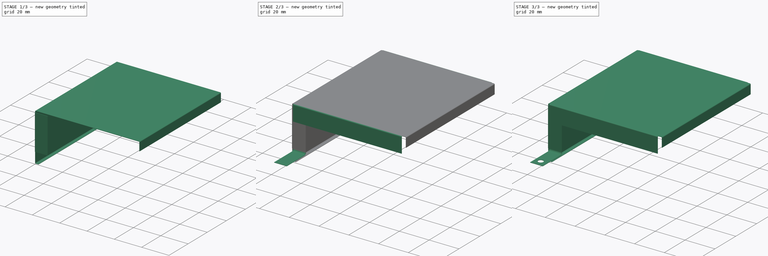
[diagram: build sequence overview — one tinted view per stage of 3, left to right]
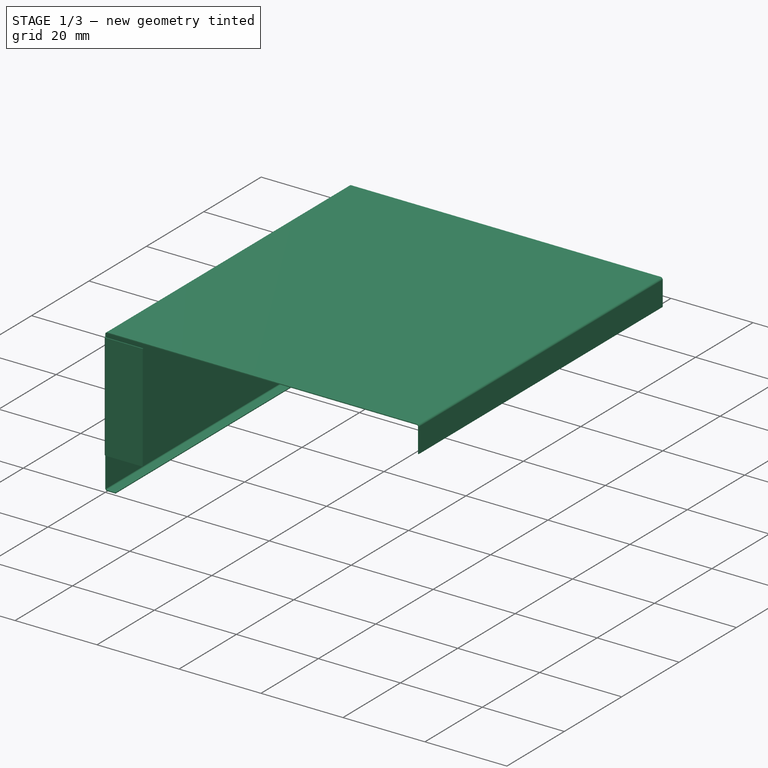
[diagram: stage 1 of 3 — iso view after this stage's code; geometry added in this stage tinted green]
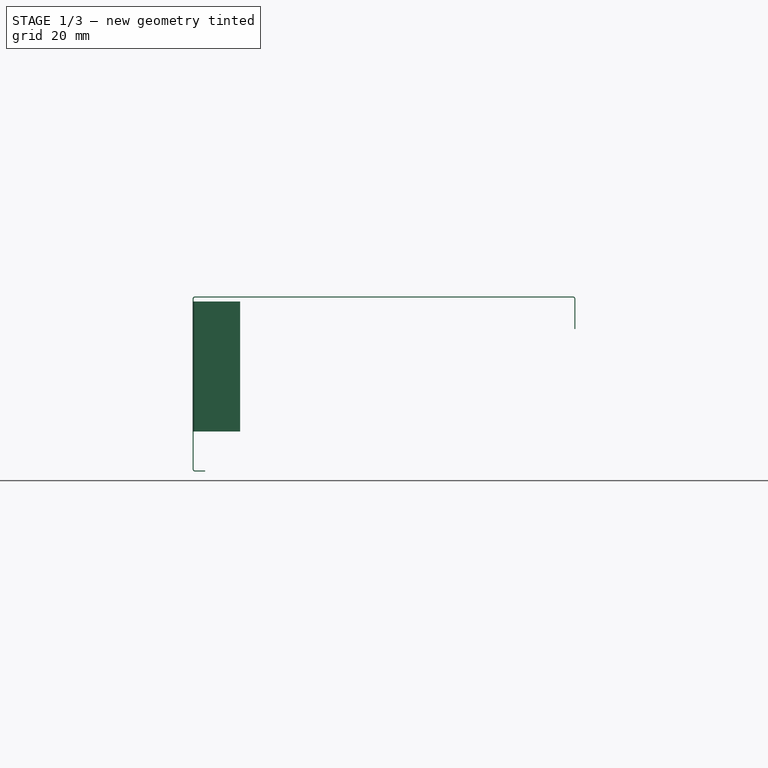
[diagram: stage 1 of 3 — front view after this stage's code; geometry added in this stage tinted green]
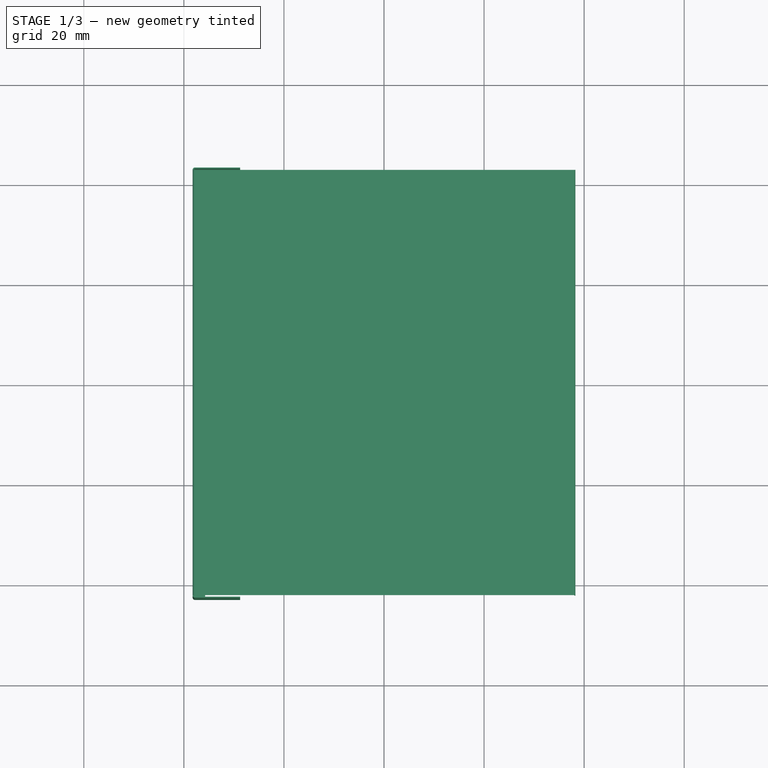
[diagram: stage 1 of 3 — top view after this stage's code; geometry added in this stage tinted green]
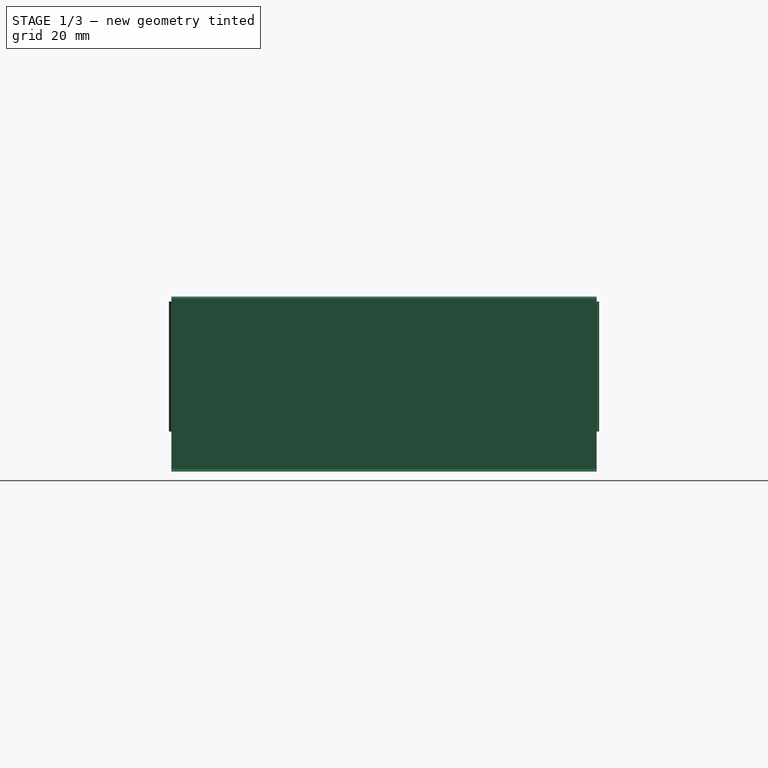
[diagram: stage 1 of 3 — right view after this stage's code; geometry added in this stage tinted green]
FCSTD DOCUMENT  (FreeCAD 0.19R23058 (Git))
Label: top_shell
License: All rights reserved
LicenseURL: http://en.wikipedia.org/wiki/All_rights_reserved
objects: Sketcher::SketchObject×6, PartDesign::Pad×4, PartDesign::Line×4, PartDesign::Pocket×2, PartDesign::Point×2, PartDesign::Body×1
note: 25 computed .brp shape members not serialized (recipe doc carries the construction recipe); baked Part::Feature solids carry a one-line shape summary decoded from their .brp

FEATURE [Sketcher::SketchObject] Sketch
  MapMode = 5
  Placement = pos=(0,0,0) rot=(1,0,0;1.5708rad)
  Support = -> [XZ_Plane]
  sketch-geometry (16):
    g0: LineSegment StartX=-35.75 StartY=-35 StartZ=0 EndX=-37.75 EndY=-35 EndZ=0
    g1: LineSegment StartX=-38.25 StartY=-34.5 StartZ=0 EndX=-38.25 EndY=-0.5 EndZ=0
    g2: LineSegment StartX=-37.75 StartY=0 StartZ=0 EndX=37.75 EndY=0 EndZ=0
    g3: LineSegment StartX=38.25 StartY=-0.5 StartZ=0 EndX=38.25 EndY=-6.5 EndZ=0
    g4: LineSegment StartX=38.25 StartY=-6.5 StartZ=0 EndX=38.05 EndY=-6.5 EndZ=0
    g5: LineSegment StartX=38.05 StartY=-6.5 StartZ=0 EndX=38.05 EndY=-0.5 EndZ=0
    g6: LineSegment StartX=37.75 StartY=-0.2 StartZ=0 EndX=-37.75 EndY=-0.2 EndZ=0
    g7: LineSegment StartX=-38.05 StartY=-0.5 StartZ=0 EndX=-38.05 EndY=-34.5 EndZ=0
    g8: LineSegment StartX=-37.75 StartY=-34.8 StartZ=0 EndX=-35.75 EndY=-34.8 EndZ=0
    g9: LineSegment StartX=-35.75 StartY=-34.8 StartZ=0 EndX=-35.75 EndY=-35 EndZ=0
    g10: ArcOfCircle CenterX=-37.75 CenterY=-34.5 CenterZ=0 NormalX=0 NormalY=0 NormalZ=1 AngleXU=0 Radius=0.5 StartAngle=3.14159 EndAngle=4.71239
    g11: ArcOfCircle CenterX=-37.75 CenterY=-34.5 CenterZ=0 NormalX=0 NormalY=0 NormalZ=1 AngleXU=0 Radius=0.3 StartAngle=3.14159 EndAngle=4.71239
    g12: ArcOfCircle CenterX=-37.75 CenterY=-0.5 CenterZ=0 NormalX=0 NormalY=0 NormalZ=1 AngleXU=0 Radius=0.3 StartAngle=1.5708 EndAngle=3.14159
    g13: ArcOfCircle CenterX=-37.75 CenterY=-0.5 CenterZ=0 NormalX=0 NormalY=0 NormalZ=1 AngleXU=0 Radius=0.5 StartAngle=1.5708 EndAngle=3.14159
    g14: ArcOfCircle CenterX=37.75 CenterY=-0.5 CenterZ=0 NormalX=0 NormalY=0 NormalZ=1 AngleXU=0 Radius=0.3 StartAngle=0 EndAngle=1.5708
    g15: ArcOfCircle CenterX=37.75 CenterY=-0.5 CenterZ=0 NormalX=0 NormalY=0 NormalZ=1 AngleXU=0 Radius=0.5 StartAngle=0 EndAngle=1.5708
  constraints (38):
    c: Horizontal(g0)
    c: Vertical(g1)
    c: Vertical(g3)
    c: Coincident(g3,g4)
    c: Horizontal(g4)
    c: Coincident(g4,g5)
    c: Vertical(g5)
    c: Vertical(g7)
    c: Horizontal(g8)
    c: Coincident(g8,g9)
    c: Coincident(g9,g0)
    c: Vertical(g9)
    c: Tangent(g0,g10) = 1.5708
    c: Tangent(g1,g10) = 1.5708
    c: Tangent(g8,g11) = -1.5708
    c: Tangent(g7,g11) = -1.5708
    c: Tangent(g7,g12) = -1.5708
    c: Tangent(g6,g12) = -1.5708
    c: Tangent(g1,g13) = 1.5708
    c: Tangent(g2,g13) = 1.5708
    c: Tangent(g5,g14) = -1.5708
    c: Tangent(g6,g14) = -1.5708
    c: Tangent(g3,g15) = 1.5708
    c: Tangent(g2,g15) = 1.5708
    c: DistanceY(g9,g9) = 0.2
    c: Coincident(g10,g11)
    c: Coincident(g13,g12)
    c: Coincident(g15,g14)
    c: Radius(g10) = 0.5
    c: DistanceX(g2,g2) = 75.5
    c: DistanceY(g1,g1) = 34
    c: PointOnObject(g2,g-1)
    c: Symmetric(g2,g2,g-2)
    c: Equal(g13,g15)
    c: Equal(g15,g10)
    c: Equal(g9,g4)
    c: DistanceY(g3,g3) = 6
    c: DistanceX(g0,g0) = 2
FEATURE [PartDesign::Pad] Pad
  Direction = (1,1,1)
  Length = 85
  Length2 = 100
  Midplane = true
  Placement = pos=(0,0,0) rot=(1,0,0;1.5708rad)
  Profile = -> Sketch
  Type = 0
FEATURE [Sketcher::SketchObject] Sketch001
  AttachmentOffset = pos=(0,0,-1) rot=(0,0,1;0rad)
  ExternalGeometry = -> [Pad]
  MapMode = 5
  Placement = pos=(0,0,-1) rot=(0,0,1;3.14159rad)
  Support = -> [Pad]
  sketch-geometry (14):
    g0: ArcOfCircle CenterX=37.75 CenterY=42.5 CenterZ=0 NormalX=0 NormalY=0 NormalZ=1 AngleXU=0 Radius=0.5 StartAngle=0 EndAngle=1.5708
    g1: ArcOfCircle CenterX=37.75 CenterY=42.5 CenterZ=0 NormalX=0 NormalY=0 NormalZ=1 AngleXU=0 Radius=0.3 StartAngle=0 EndAngle=1.5708
    g2: LineSegment StartX=38.05 StartY=42.5 StartZ=0 EndX=38.25 EndY=42.5 EndZ=0
    g3: LineSegment StartX=37.75 StartY=43 StartZ=0 EndX=28.75 EndY=43 EndZ=0
    g4: LineSegment StartX=28.75 StartY=43 StartZ=0 EndX=28.75 EndY=42.8 EndZ=0
    g5: LineSegment StartX=28.75 StartY=42.8 StartZ=0 EndX=37.75 EndY=42.8 EndZ=0
    g6: LineSegment [constr] StartX=38.05 StartY=42.5 StartZ=0 EndX=37.75 EndY=42.5 EndZ=0
    g7: ArcOfCircle CenterX=37.75 CenterY=-42.5 CenterZ=0 NormalX=0 NormalY=0 NormalZ=1 AngleXU=0 Radius=0.5 StartAngle=4.71239 EndAngle=6.28319
    g8: ArcOfCircle CenterX=37.75 CenterY=-42.5 CenterZ=0 NormalX=0 NormalY=0 NormalZ=1 AngleXU=0 Radius=0.3 StartAngle=4.71239 EndAngle=6.28319
    g9: LineSegment StartX=38.05 StartY=-42.5 StartZ=0 EndX=38.25 EndY=-42.5 EndZ=0
    g10: LineSegment StartX=37.75 StartY=-42.8 StartZ=0 EndX=28.75 EndY=-42.8 EndZ=0
    g11: LineSegment StartX=28.75 StartY=-42.8 StartZ=0 EndX=28.75 EndY=-43 EndZ=0
    g12: LineSegment StartX=28.75 StartY=-43 StartZ=0 EndX=37.75 EndY=-43 EndZ=0
    g13: LineSegment [constr] StartX=37.75 StartY=-42.5 StartZ=0 EndX=38.05 EndY=-42.5 EndZ=0
  constraints (36):
    c: Coincident(g1,g0)
    c: Horizontal(g2)
    c: Horizontal(g3)
    c: Coincident(g3,g4)
    c: Vertical(g4)
    c: Coincident(g4,g5)
    c: Horizontal(g5)
    c: Tangent(g3,g0) = -1.5708
    c: Tangent(g5,g1) = 1.5708
    c: Coincident(g2,g1)
    c: Coincident(g2,g0)
    c: Coincident(g6,g1)
    c: Horizontal(g6)
    c: Coincident(g0,g6)
    c: Coincident(g0,g-3)
    c: Radius(g0) = 0.5
    c: DistanceX(g2,g2) = 0.2
    c: DistanceX(g3,g3) = 9
    c: Coincident(g8,g7)
    c: Horizontal(g10)
    c: Coincident(g10,g11)
    c: Vertical(g11)
    c: Coincident(g11,g12)
    c: Horizontal(g12)
    c: Tangent(g10,g8) = 1.5708
    c: Tangent(g12,g7) = -1.5708
    c: Coincident(g8,g9)
    c: Equal(g2,g9)
    c: Equal(g7,g0)
    c: Coincident(g9,g7)
    c: Horizontal(g9)
    c: Coincident(g7,g-4)
    c: DistanceX(g12,g12) = 9
    c: Coincident(g13,g7)
    c: Coincident(g13,g8)
    c: Horizontal(g13)
FEATURE [PartDesign::Pad] Pad001
  BaseFeature = -> Pad
  Direction = (1,1,1)
  Length = 26
  Length2 = 100
  Placement = pos=(0,0,0) rot=(1,0,0;1.5708rad)
  Profile = -> Sketch001
  Reversed = true
  Type = 0
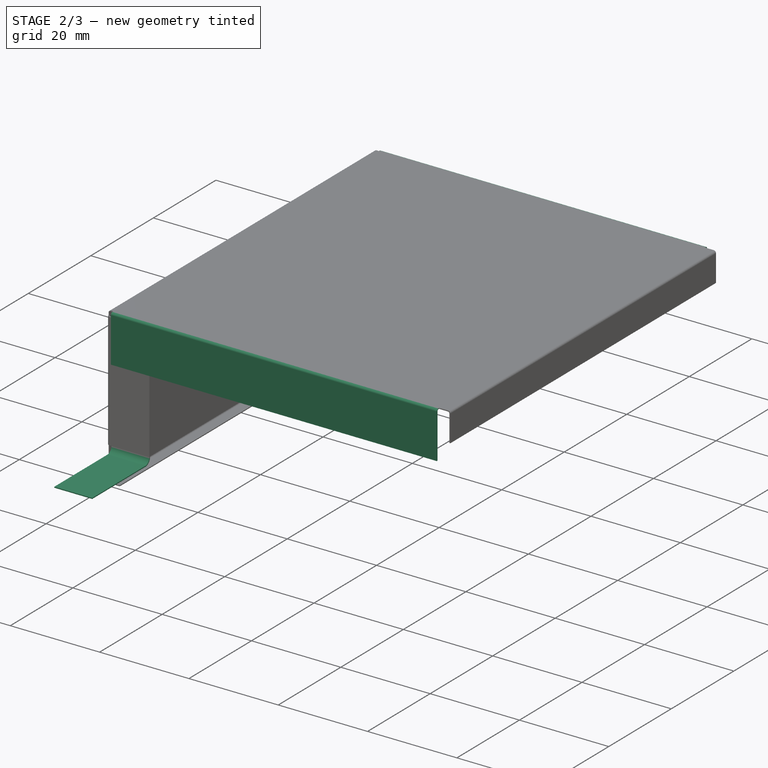
[diagram: stage 2 of 3 — iso view after this stage's code; geometry added in this stage tinted green]
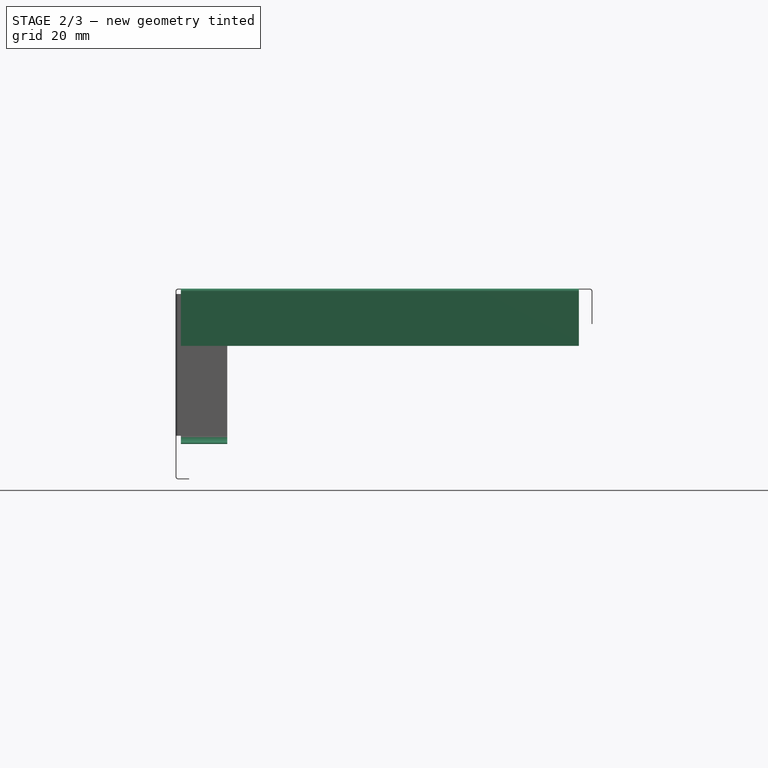
[diagram: stage 2 of 3 — front view after this stage's code; geometry added in this stage tinted green]
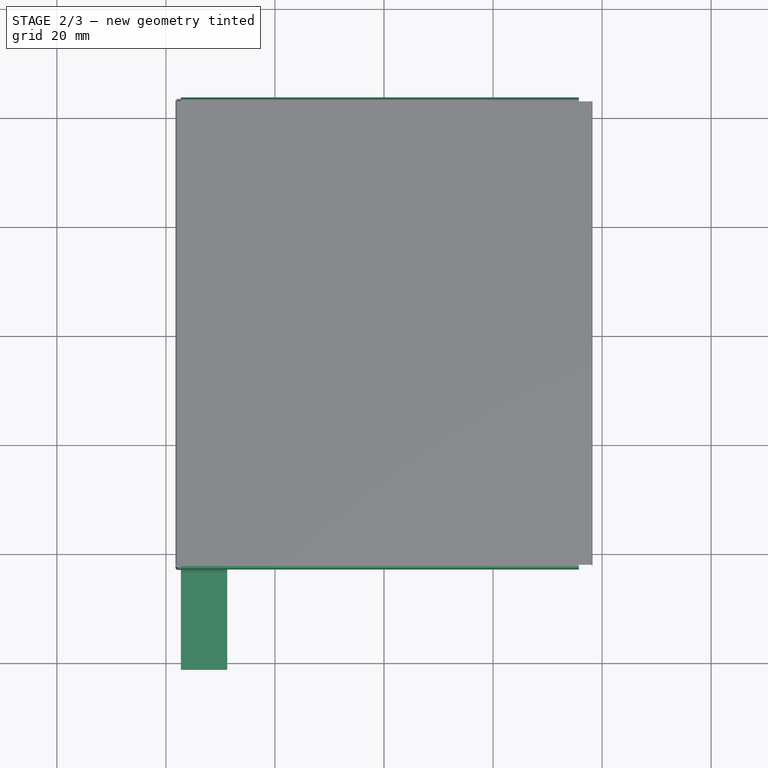
[diagram: stage 2 of 3 — top view after this stage's code; geometry added in this stage tinted green]
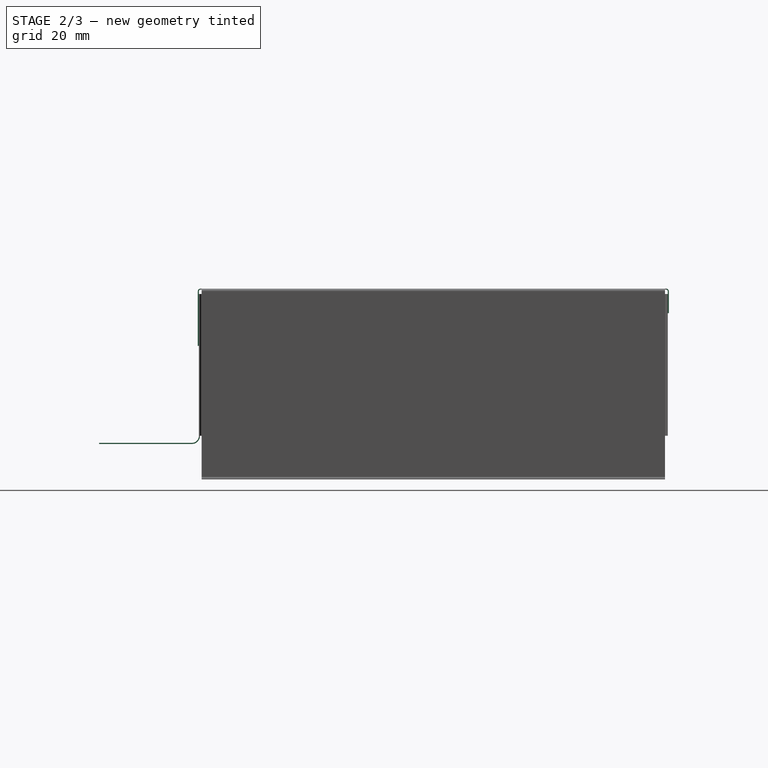
[diagram: stage 2 of 3 — right view after this stage's code; geometry added in this stage tinted green]
FEATURE [Sketcher::SketchObject] Sketch002
  AttachmentOffset = pos=(0,0,-1) rot=(0,0,1;0rad)
  ExternalGeometry = -> [Pad001]
  MapMode = 5
  Placement = pos=(-37.25,0,2e-16) rot=(0.707107,0,-0.707107;3.14159rad)
  Support = -> [Pad001]
  sketch-geometry (16):
    g0: ArcOfCircle CenterX=0.5 CenterY=42.7 CenterZ=0 NormalX=0 NormalY=0 NormalZ=1 AngleXU=0 Radius=0.5 StartAngle=1.5708 EndAngle=3.14159
    g1: ArcOfCircle CenterX=0.5 CenterY=42.7 CenterZ=0 NormalX=0 NormalY=0 NormalZ=1 AngleXU=0 Radius=0.3 StartAngle=1.5708 EndAngle=3.14159
    g2: LineSegment StartX=-5.88e-14 StartY=42.7 StartZ=0 EndX=-5.88e-14 EndY=42.5 EndZ=0
    g3: LineSegment StartX=-5.88e-14 StartY=42.5 StartZ=0 EndX=0.2 EndY=42.5 EndZ=0
    g4: LineSegment StartX=0.2 StartY=42.5 StartZ=0 EndX=0.2 EndY=42.7 EndZ=0
    g5: LineSegment StartX=0.5 StartY=43 StartZ=0 EndX=10.5 EndY=43 EndZ=0
    g6: LineSegment StartX=10.5 StartY=43 StartZ=0 EndX=10.5 EndY=43.2 EndZ=0
    g7: LineSegment StartX=10.5 StartY=43.2 StartZ=0 EndX=0.5 EndY=43.2 EndZ=0
    g8: ArcOfCircle CenterX=0.5 CenterY=-42.7 CenterZ=0 NormalX=0 NormalY=0 NormalZ=1 AngleXU=0 Radius=0.5 StartAngle=3.14159 EndAngle=4.71239
    g9: ArcOfCircle CenterX=0.5 CenterY=-42.7 CenterZ=0 NormalX=0 NormalY=0 NormalZ=1 AngleXU=0 Radius=0.3 StartAngle=3.14159 EndAngle=4.71239
    g10: LineSegment StartX=3.367e-13 StartY=-42.7 StartZ=0 EndX=3.367e-13 EndY=-42.5 EndZ=0
    g11: LineSegment StartX=3.367e-13 StartY=-42.5 StartZ=0 EndX=0.2 EndY=-42.5 EndZ=0
    g12: LineSegment StartX=0.2 StartY=-42.5 StartZ=0 EndX=0.2 EndY=-42.7 EndZ=0
    g13: LineSegment StartX=0.5 StartY=-43 StartZ=0 EndX=4.5 EndY=-43 EndZ=0
    g14: LineSegment StartX=4.5 StartY=-43 StartZ=0 EndX=4.5 EndY=-43.2 EndZ=0
    g15: LineSegment StartX=4.5 StartY=-43.2 StartZ=0 EndX=0.5 EndY=-43.2 EndZ=0
  constraints (40):
    c: Coincident(g1,g0)
    c: Vertical(g2)
    c: Coincident(g2,g3)
    c: Horizontal(g3)
    c: Coincident(g3,g4)
    c: Vertical(g4)
    c: Horizontal(g5)
    c: Coincident(g5,g6)
    c: Vertical(g6)
    c: Coincident(g6,g7)
    c: Horizontal(g7)
    c: Tangent(g2,g0) = -1.5708
    c: Tangent(g4,g1) = 1.5708
    c: Tangent(g1,g5) = 1.5708
    c: Tangent(g7,g0) = -1.5708
    c: DistanceY(g6,g6) = 0.2
    c: Radius(g0) = 0.5
    c: Coincident(g2,g-3)
    c: DistanceY(g2,g2) = 0.2
    c: Coincident(g9,g8)
    c: Vertical(g10)
    c: Coincident(g10,g11)
    c: Horizontal(g11)
    c: Coincident(g11,g12)
    c: Vertical(g12)
    c: Horizontal(g13)
    c: Coincident(g13,g14)
    c: Vertical(g14)
    c: Coincident(g14,g15)
    c: Horizontal(g15)
    c: Tangent(g8,g10) = 1.5708
    c: Tangent(g12,g9) = -1.5708
    c: Tangent(g9,g13) = -1.5708
    c: Tangent(g8,g15) = 1.5708
    c: Equal(g8,g0)
    c: Equal(g11,g3)
    c: Equal(g10,g2)
    c: DistanceX(g7,g7) = 10
    c: Coincident(g10,g-4)
    c: DistanceX(g15,g15) = 4
FEATURE [PartDesign::Pad] Pad002
  BaseFeature = -> Pad001
  Direction = (1,1,1)
  Length = 73
  Length2 = 100
  Placement = pos=(0,0,0) rot=(1,0,0;1.5708rad)
  Profile = -> Sketch002
  Reversed = true
  Type = 0
FEATURE [Sketcher::SketchObject] Sketch003
  ExternalGeometry = -> [Pad002]
  MapMode = 5
  Placement = pos=(-28.75,0,0) rot=(0.707107,0,0.707107;3.14159rad)
  Support = -> [Pad002]
  sketch-geometry (7):
    g0: ArcOfCircle CenterX=-27 CenterY=44.3 CenterZ=0 NormalX=0 NormalY=0 NormalZ=1 AngleXU=0 Radius=1.3 StartAngle=3.14159 EndAngle=4.71239
    g1: ArcOfCircle CenterX=-27 CenterY=44.3 CenterZ=0 NormalX=0 NormalY=0 NormalZ=1 AngleXU=0 Radius=1.5 StartAngle=3.14159 EndAngle=4.71239
    g2: LineSegment StartX=-28.3 StartY=44.3 StartZ=0 EndX=-28.3 EndY=61.3 EndZ=0
    g3: LineSegment StartX=-28.3 StartY=61.3 StartZ=0 EndX=-28.5 EndY=61.3 EndZ=0
    g4: LineSegment StartX=-28.5 StartY=61.3 StartZ=0 EndX=-28.5 EndY=44.3 EndZ=0
    g5: LineSegment StartX=-27 StartY=43 StartZ=0 EndX=-27 EndY=42.8 EndZ=0
    g6: LineSegment [constr] StartX=-27 StartY=43 StartZ=0 EndX=-27 EndY=44.3 EndZ=0
  constraints (18):
    c: Coincident(g1,g0)
    c: Vertical(g2)
    c: Coincident(g2,g3)
    c: Horizontal(g3)
    c: Coincident(g3,g4)
    c: Vertical(g4)
    c: Tangent(g2,g0) = 1.5708
    c: Tangent(g4,g1) = -1.5708
    c: Vertical(g5)
    c: Coincident(g0,g5)
    c: Coincident(g5,g1)
    c: DistanceY(g5,g5) = 0.2
    c: Coincident(g6,g0)
    c: Coincident(g6,g0)
    c: Vertical(g6)
    c: Coincident(g1,g-3)
    c: Radius(g1) = 1.5
    c: DistanceY(g4,g4) = 17
FEATURE [PartDesign::Pad] Pad003
  BaseFeature = -> Pad002
  Direction = (1,1,1)
  Length = 8.5
  Length2 = 100
  Placement = pos=(0,0,0) rot=(1,0,0;1.5708rad)
  Profile = -> Sketch003
  Reversed = true
  Type = 0
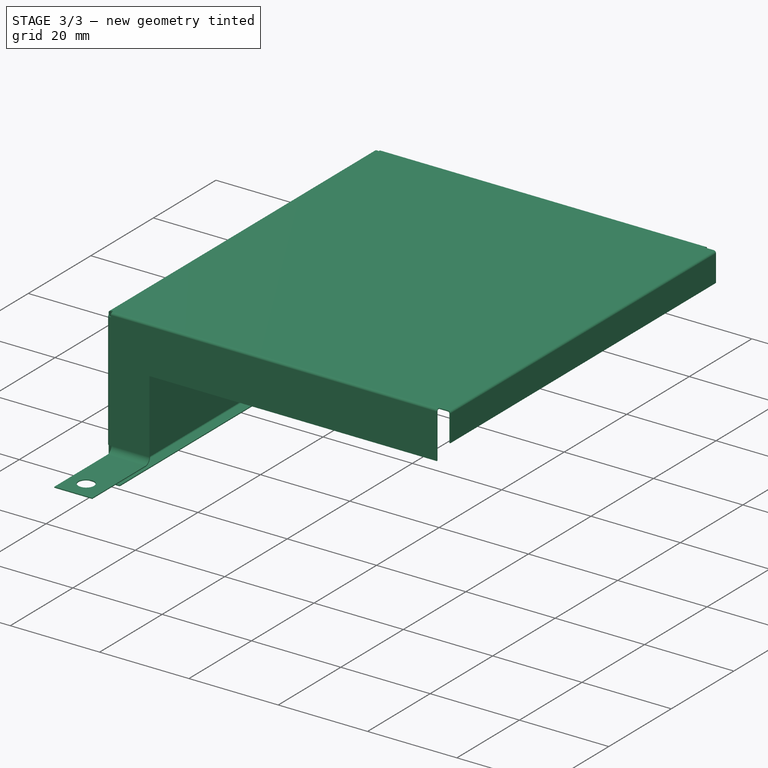
[diagram: stage 3 of 3 — iso view after this stage's code; geometry added in this stage tinted green]
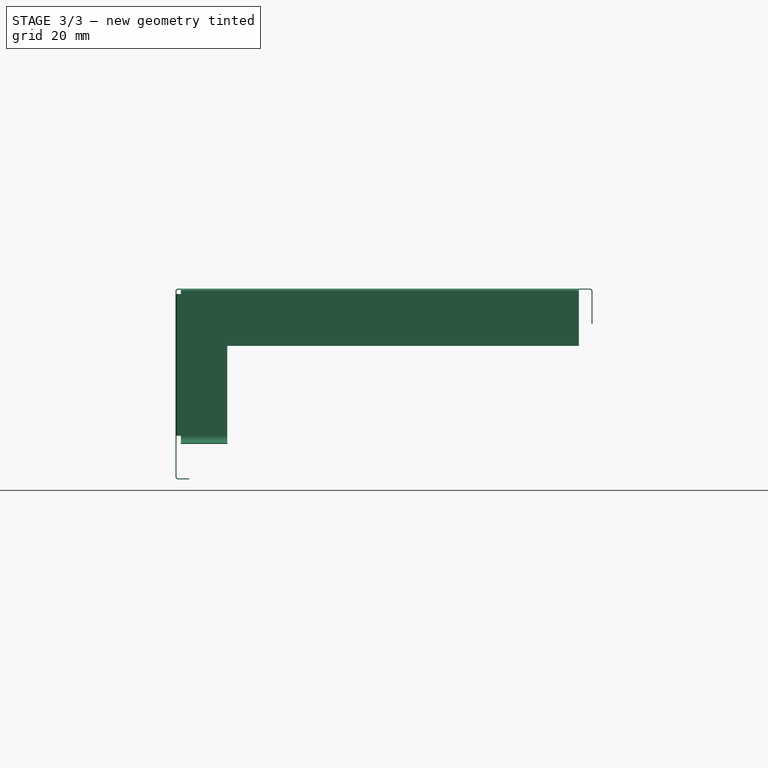
[diagram: stage 3 of 3 — front view after this stage's code; geometry added in this stage tinted green]
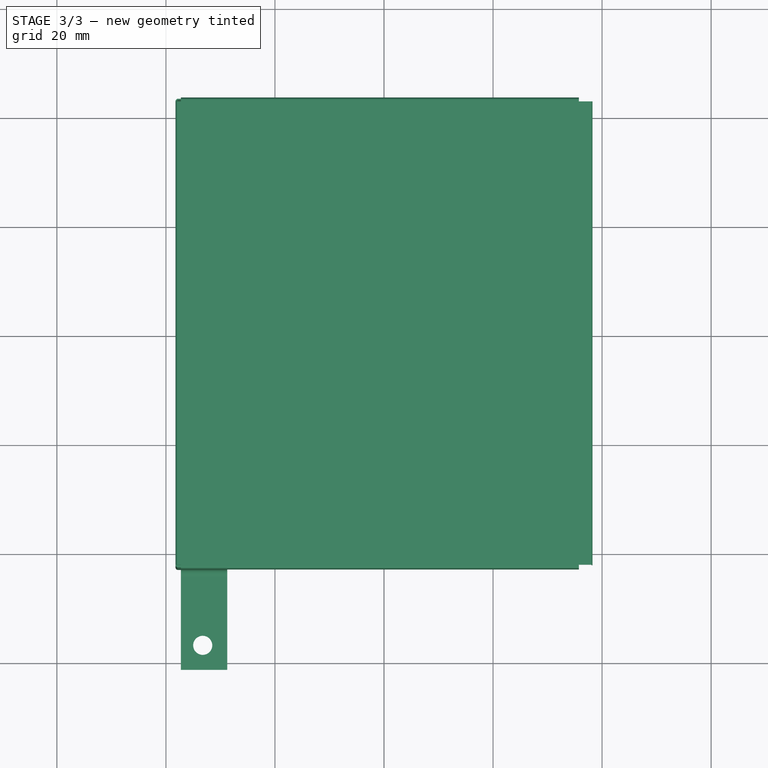
[diagram: stage 3 of 3 — top view after this stage's code; geometry added in this stage tinted green]
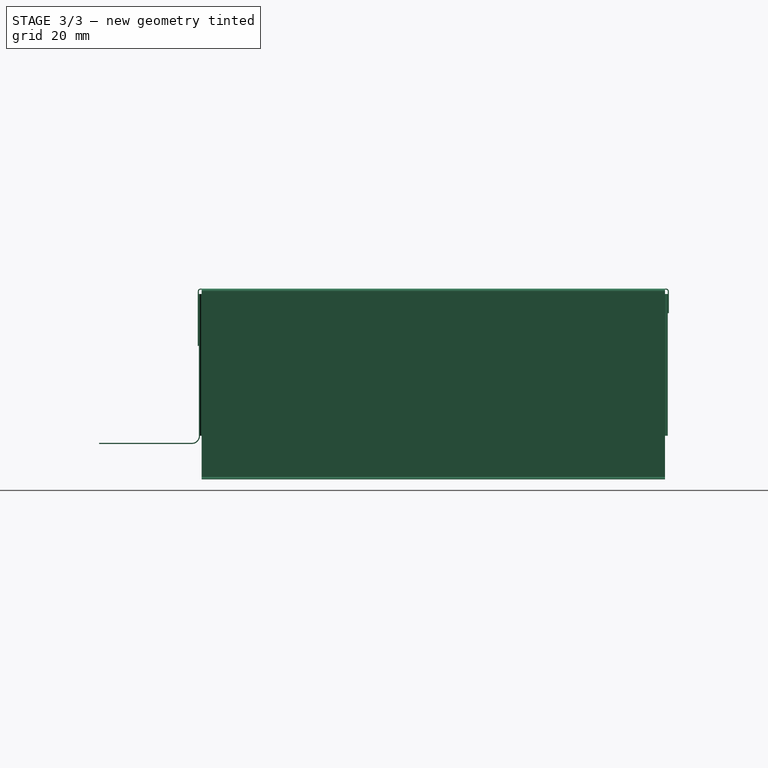
[diagram: stage 3 of 3 — right view after this stage's code; geometry added in this stage tinted green]
FEATURE [Sketcher::SketchObject] Sketch004
  ExternalGeometry = -> [Pad003]
  MapMode = 5
  Placement = pos=(0,43,0) rot=(-1,0,0;1.5708rad)
  Support = -> [Pad003]
  sketch-geometry (1):
    g0: Circle CenterX=-32.75 CenterY=15 CenterZ=0 NormalX=0 NormalY=0 NormalZ=1 AngleXU=0 Radius=1.75
  constraints (3):
    c: DistanceY(g0,g-3) = 12
    c: DistanceX(g0,g-3) = 4
    c: Radius(g0) = 1.75
FEATURE [PartDesign::Pocket] Pocket
  BaseFeature = -> Pad003
  Length = 5
  Length2 = 100
  Placement = pos=(0,0,0) rot=(1,0,0;1.5708rad)
  Profile = -> Sketch004
  Type = 0
FEATURE [PartDesign::Line] HoleAxis_1
  AttacherType = Attacher::AttachEngineLine
  Length = 4.93174
  MapMode = 19
  Placement = pos=(-32.75,42.8,-15) rot=(-1,0,0;1.5708rad)
  ResizeMode = 1
  Support = -> [Pocket]
FEATURE [PartDesign::Line] HoleAxis_2
  AttacherType = Attacher::AttachEngineLine
  Length = 4.93174
  MapMode = 19
  Placement = pos=(-32.75,43,-15) rot=(-1,0,0;1.5708rad)
  ResizeMode = 1
  Support = -> [Pocket]
FEATURE [Sketcher::SketchObject] Sketch005
  ExternalGeometry = -> [Pocket]
  MapMode = 5
  Placement = pos=(-6.2e-15,0,-28.3) rot=(0,0,1;3.14159rad)
  Support = -> [Pocket]
  sketch-geometry (1):
    g0: Circle CenterX=33.25 CenterY=56.8 CenterZ=0 NormalX=0 NormalY=0 NormalZ=1 AngleXU=0 Radius=1.75
  constraints (3):
    c: Radius(g0) = 1.75
    c: DistanceY(g0,g-3) = 4.5
    c: DistanceX(g0,g-3) = 4
FEATURE [PartDesign::Pocket] Pocket001
  BaseFeature = -> Pocket
  Length = 5
  Length2 = 100
  Placement = pos=(0,0,0) rot=(1,0,0;1.5708rad)
  Profile = -> Sketch005
  Type = 0
FEATURE [PartDesign::Line] HoleAxis_3
  AttacherType = Attacher::AttachEngineLine
  Length = 4.93174
  MapMode = 19
  Placement = pos=(-33.25,-56.8,-28.3) rot=(0,0,1;3.14159rad)
  ResizeMode = 1
  Support = -> [Pocket001]
FEATURE [PartDesign::Line] HoleAxis_4
  AttacherType = Attacher::AttachEngineLine
  Length = 4.93174
  MapMode = 19
  Placement = pos=(-33.25,-56.8,-28.5) rot=(0,0,1;3.14159rad)
  ResizeMode = 1
  Support = -> [Pocket001]
FEATURE [PartDesign::Point] Label_1
  AttacherType = Attacher::AttachEnginePoint
  AttachmentOffset = pos=(5,0,0) rot=(0,0,1;0rad)
  MapMode = 39
  Placement = pos=(-32.25,-43.2,-10.5) rot=(0,0,1;0rad)
  Support = -> [Pocket001]
FEATURE [PartDesign::Point] Point_1  label="Label_2"
  AttacherType = Attacher::AttachEnginePoint
  AttachmentOffset = pos=(3,1,0) rot=(0,0,1;0rad)
  MapMode = 39
  Placement = pos=(-34.75,-41.5,0) rot=(0,0,1;0rad)
  Support = -> [Pocket001]
FEATURE [PartDesign::Body] Body
  Group = -> [Sketch,Pad,Sketch001,Pad001,Sketch002,Pad002,Sketch003,Pad003,Sketch004,Pocket,HoleAxis_1,HoleAxis_2,Sketch005,Pocket001,HoleAxis_3,HoleAxis_4,Label_1,Point_1]
  Origin = -> Origin
  Tip = -> Pocket001
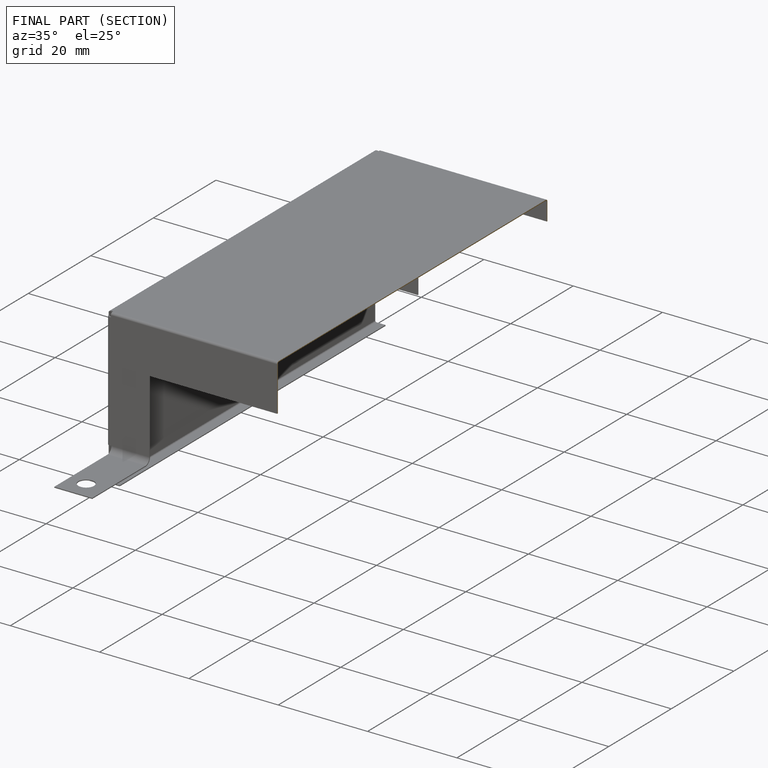
[diagram: finished part — half-section view (interior)]
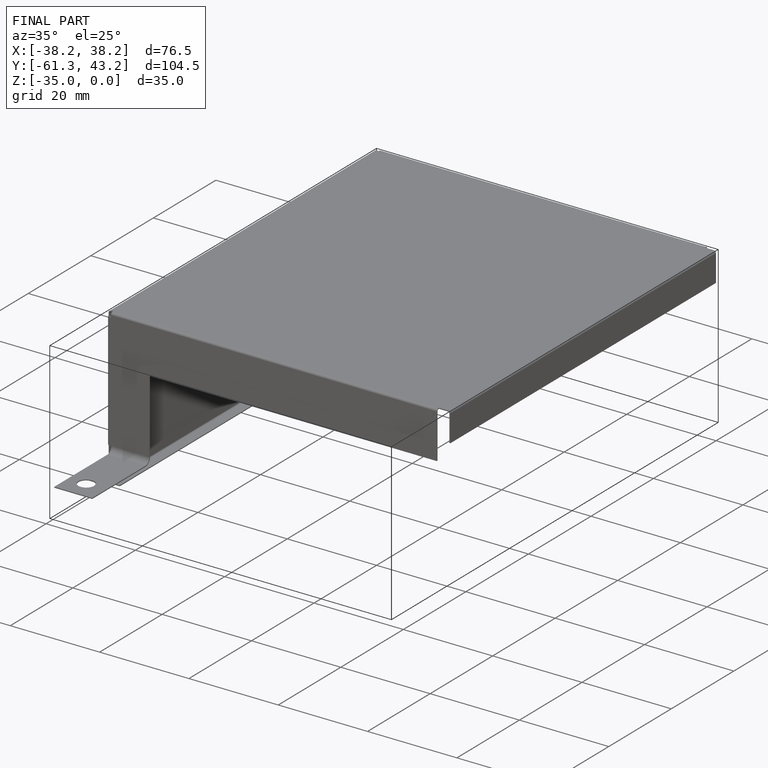
[diagram: finished part — iso view with bounding-box wireframe]
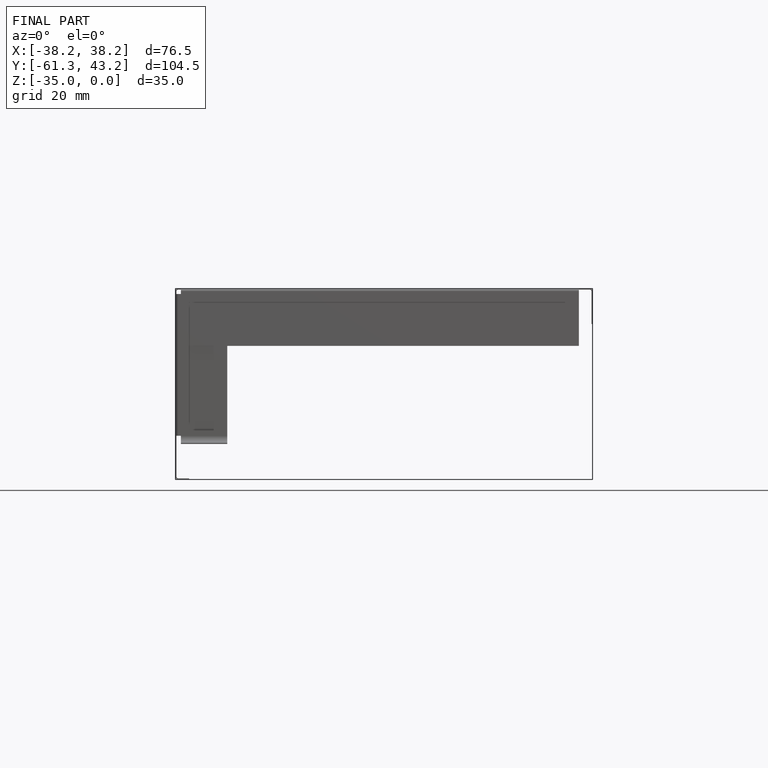
[diagram: finished part — front view with bounding-box wireframe]
